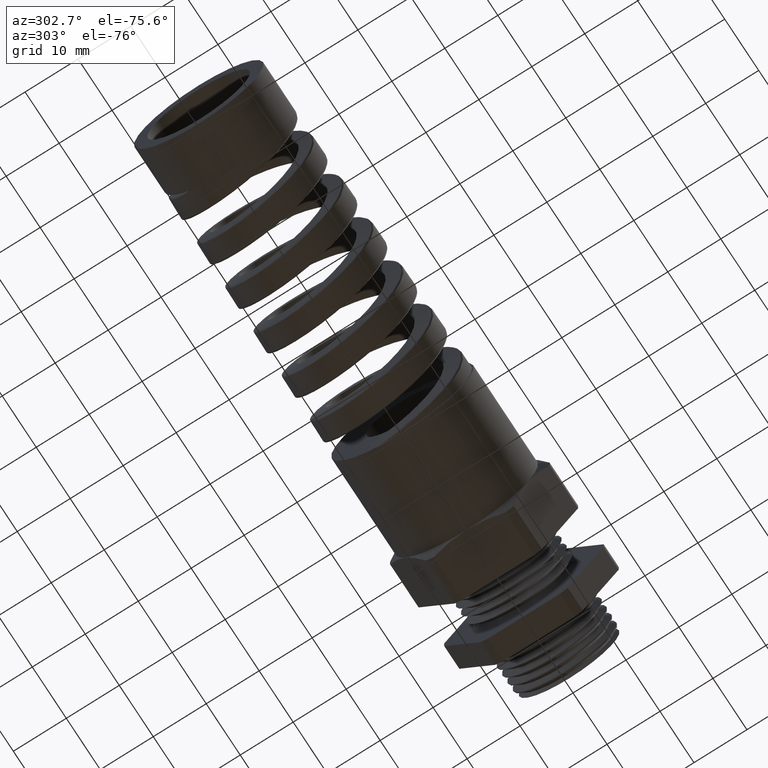
[diagram: clean part render]
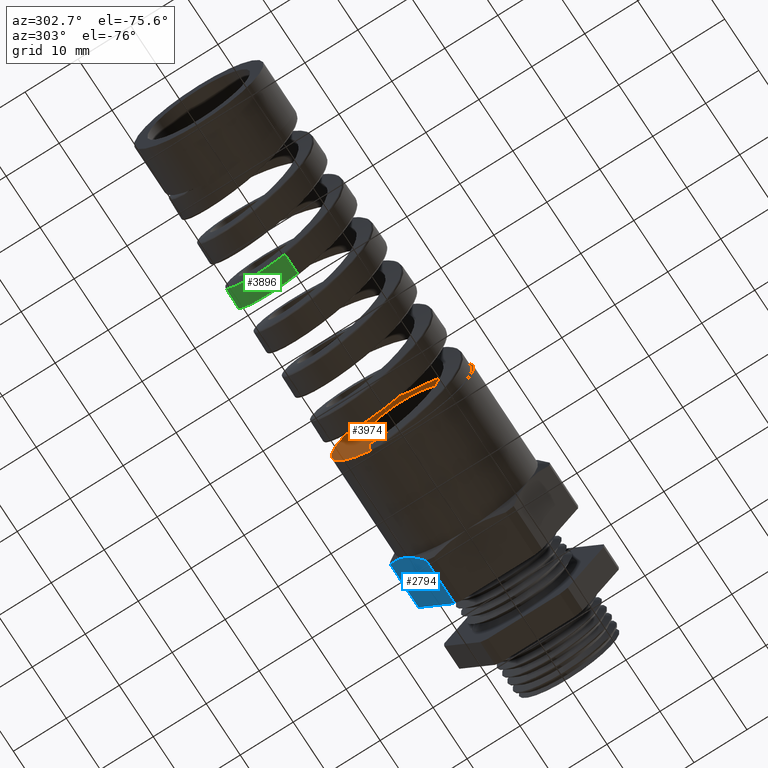
[diagram: same view with three faces highlighted in distinct colors, each labeled with its STEP entity id]
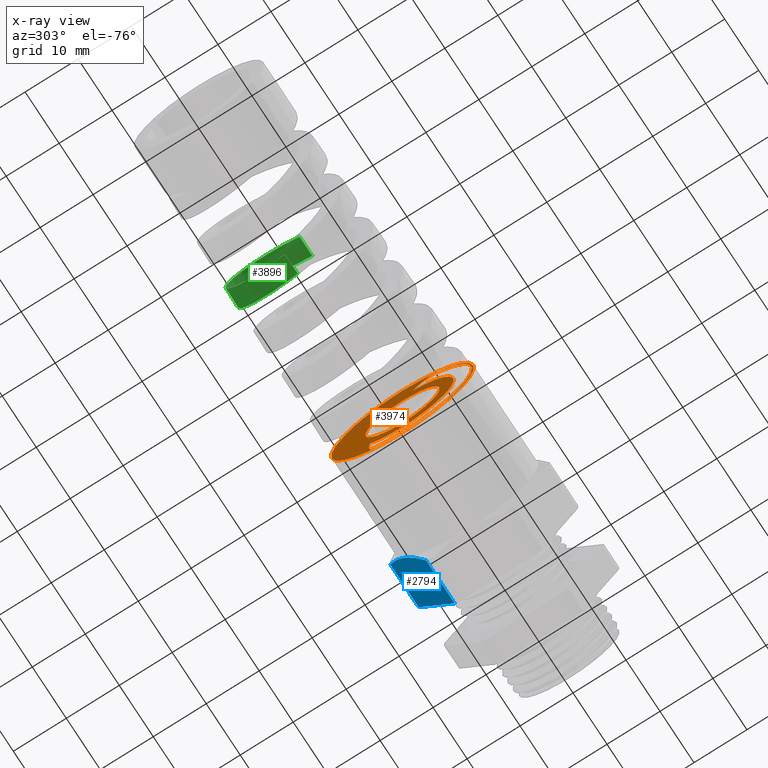
[diagram: x-ray of the same camera — body ghosted, the three highlighted faces saturated]
A machine part, auxiliary view with three faces highlighted in distinct colors.
The next image is the same camera in x-ray (body ghosted, the three faces saturated) — at least one of them is partly hidden behind the body in this view.
Their STEP definitions:

[orange] entity #3974 — the highlighted planar face has unit normal (-1, 0, 0).
#437 = DIRECTION ( 'NONE',  ( -1.000000000000000000, 0.0000000000000000000, 0.0000000000000000000 ) ) ;
#438 = CARTESIAN_POINT ( 'NONE',  ( -1.581476290660619200, 0.0000000000000000000, 0.0000000000000000000 ) ) ;
#439 = AXIS2_PLACEMENT_3D ( 'NONE', #438, #437, #505 ) ;
#440 = PLANE ( 'NONE',  #439 ) ;
#442 = FACE_BOUND ( 'NONE', #3964, .T. ) ;
#443 = FACE_OUTER_BOUND ( 'NONE', #3969, .T. ) ;
#444 = FACE_BOUND ( 'NONE', #3975, .T. ) ;
#505 = DIRECTION ( 'NONE',  ( 0.0000000000000000000, 0.0000000000000000000, 1.000000000000000000 ) ) ;
#610 = DIRECTION ( 'NONE',  ( 0.0000000000000000000, 0.0000000000000000000, 1.000000000000000000 ) ) ;
#611 = DIRECTION ( 'NONE',  ( -1.000000000000000000, 0.0000000000000000000, 0.0000000000000000000 ) ) ;
#612 = CARTESIAN_POINT ( 'NONE',  ( -1.581476290660619200, 0.0000000000000000000, 0.0000000000000000000 ) ) ;
#613 = AXIS2_PLACEMENT_3D ( 'NONE', #612, #611, #610 ) ;
#614 = CIRCLE ( 'NONE', #613, 0.2750000000000000200 ) ;
#738 = CIRCLE ( 'NONE', #756, 0.5170138455414640100 ) ;
#739 = CARTESIAN_POINT ( 'NONE',  ( -1.581476290660619000, 0.2395947729159171600, -0.4479899465159837800 ) ) ;
#740 = CARTESIAN_POINT ( 'NONE',  ( -1.581476290660619500, 0.2393978166125017300, -0.4489887989527713800 ) ) ;
#741 = CARTESIAN_POINT ( 'NONE',  ( -1.581476290660619200, 0.2387443856755334900, -0.4497935887819383700 ) ) ;
#742 = CARTESIAN_POINT ( 'NONE',  ( -1.581476290660618800, 0.2374701702775484600, -0.4513323751275207200 ) ) ;
#743 = CARTESIAN_POINT ( 'NONE',  ( -1.581476290660619000, 0.2367668135720972800, -0.4520481940536000300 ) ) ;
#744 = CARTESIAN_POINT ( 'NONE',  ( -1.581476290660619000, 0.2345930094758209300, -0.4541116560727949700 ) ) ;
#745 = CARTESIAN_POINT ( 'NONE',  ( -1.581476290660619200, 0.2330440772027533300, -0.4553825208635118900 ) ) ;
#746 = CARTESIAN_POINT ( 'NONE',  ( -1.581476290660619000, 0.2282981278050045500, -0.4590447653421638700 ) ) ;
#747 = CARTESIAN_POINT ( 'NONE',  ( -1.581476290660619500, 0.2249812029482343700, -0.4612857056665572400 ) ) ;
#748 = CARTESIAN_POINT ( 'NONE',  ( -1.581476290660619000, 0.2148458321704238800, -0.4676898152625065800 ) ) ;
#749 = CARTESIAN_POINT ( 'NONE',  ( -1.581476290660619900, 0.2078214009036236900, -0.4715219357451056500 ) ) ;
#750 = CARTESIAN_POINT ( 'NONE',  ( -1.581476290660619500, 0.1863209287074156500, -0.4821457008317258700 ) ) ;
#751 = CARTESIAN_POINT ( 'NONE',  ( -1.581476290660619200, 0.1714300096581214100, -0.4880273622731607400 ) ) ;
#752 = CARTESIAN_POINT ( 'NONE',  ( -1.581476290660619200, 0.1561883609519479100, -0.4928574970361280800 ) ) ;
#753 = DIRECTION ( 'NONE',  ( 0.0000000000000000000, 0.0000000000000000000, 1.000000000000000000 ) ) ;
#754 = DIRECTION ( 'NONE',  ( 1.000000000000000000, 0.0000000000000000000, 0.0000000000000000000 ) ) ;
#755 = CARTESIAN_POINT ( 'NONE',  ( -1.581476290660619200, 0.0000000000000000000, 0.0000000000000000000 ) ) ;
#756 = AXIS2_PLACEMENT_3D ( 'NONE', #755, #754, #753 ) ;
#757 = B_SPLINE_CURVE_WITH_KNOTS ( 'NONE', 3,
 ( #752, #751, #750, #749, #748, #747, #746, #745, #744, #743, #742, #741, #740, #739 ),
 .UNSPECIFIED., .F., .F.,
 ( 4, 2, 2, 2, 2, 2, 4 ),
 ( 0.0000000000000000000, 0.001217786265975421200, 0.001826679398963132000, 0.002131125965456987100, 0.002283349248703915200, 0.002359460890327377700, 0.002435572531950839700 ),
 .UNSPECIFIED. ) ;
#758 = CARTESIAN_POINT ( 'NONE',  ( -1.581476290660619900, -0.2035264114715413800, 0.4651117321561694100 ) ) ;
#759 = CARTESIAN_POINT ( 'NONE',  ( -1.581476290660619000, 0.2395947729159171600, -0.4479899465159837800 ) ) ;
#760 = CARTESIAN_POINT ( 'NONE',  ( -1.581476290660618800, 0.2445930851603557700, -0.4226412966956344400 ) ) ;
#761 = CARTESIAN_POINT ( 'NONE',  ( -1.581476290660619900, 0.2476079300222964500, -0.3967413439239690900 ) ) ;
#762 = CARTESIAN_POINT ( 'NONE',  ( -1.581476290660620300, 0.2491756876844481700, -0.3452950546097911500 ) ) ;
#763 = CARTESIAN_POINT ( 'NONE',  ( -1.581476290660618300, 0.2477838272508650900, -0.3196151953929042300 ) ) ;
#764 = CARTESIAN_POINT ( 'NONE',  ( -1.581476290660618800, 0.2439768108765436900, -0.2939833847127851800 ) ) ;
#765 = B_SPLINE_CURVE_WITH_KNOTS ( 'NONE', 3,
 ( #764, #763, #762, #761, #760, #759 ),
 .UNSPECIFIED., .F., .F.,
 ( 4, 2, 4 ),
 ( 0.0001882138518757768500, 0.002146741590613923000, 0.004105269329352069000 ),
 .UNSPECIFIED. ) ;
#766 = CARTESIAN_POINT ( 'NONE',  ( -1.581476290660619000, 0.2395947729159171600, -0.4479899465159837800 ) ) ;
#772 = CARTESIAN_POINT ( 'NONE',  ( -1.581476290660619200, -0.08011283778680081100, 0.3735409588715516400 ) ) ;
#773 = CARTESIAN_POINT ( 'NONE',  ( -1.581476290660619200, -0.09805496664331042600, 0.3924235497095024400 ) ) ;
#774 = CARTESIAN_POINT ( 'NONE',  ( -1.581476290660618300, -0.1174194812276305000, 0.4093455164549311100 ) ) ;
#775 = CARTESIAN_POINT ( 'NONE',  ( -1.581476290660619000, -0.1586306682812223000, 0.4397680302454001800 ) ) ;
#776 = CARTESIAN_POINT ( 'NONE',  ( -1.581476290660619900, -0.1804812060211607400, 0.4532632493806879600 ) ) ;
#777 = CARTESIAN_POINT ( 'NONE',  ( -1.581476290660619900, -0.2035264114715413800, 0.4651117321561694100 ) ) ;
#778 = CARTESIAN_POINT ( 'NONE',  ( -1.581476290660619200, -0.2878362359246521300, 0.4294806372472463300 ) ) ;
#779 = CARTESIAN_POINT ( 'NONE',  ( -1.581476290660619900, -0.2749755471509224800, 0.4380998203422788500 ) ) ;
#780 = CARTESIAN_POINT ( 'NONE',  ( -1.581476290660620100, -0.2615777167442519000, 0.4456901387269509600 ) ) ;
#781 = CARTESIAN_POINT ( 'NONE',  ( -1.581476290660619900, -0.2406053994859354800, 0.4553985078564801200 ) ) ;
#782 = CARTESIAN_POINT ( 'NONE',  ( -1.581476290660619900, -0.2334437524205867100, 0.4583694052105624600 ) ) ;
#783 = CARTESIAN_POINT ( 'NONE',  ( -1.581476290660619900, -0.2224599632310886000, 0.4621299269364310700 ) ) ;
#784 = CARTESIAN_POINT ( 'NONE',  ( -1.581476290660619500, -0.2187658228172785800, 0.4632712828768610900 ) ) ;
#785 = CARTESIAN_POINT ( 'NONE',  ( -1.581476290660619200, -0.2131233264642760600, 0.4646378106417989300 ) ) ;
#786 = CARTESIAN_POINT ( 'NONE',  ( -1.581476290660619500, -0.2112182180343263300, 0.4650413015481521000 ) ) ;
#787 = CARTESIAN_POINT ( 'NONE',  ( -1.581476290660619500, -0.2083318138519043600, 0.4654355307481762300 ) ) ;
#788 = CARTESIAN_POINT ( 'NONE',  ( -1.581476290660619200, -0.2073672283011625500, 0.4655330223194334400 ) ) ;
#789 = CARTESIAN_POINT ( 'NONE',  ( -1.581476290660619200, -0.2054261782288094900, 0.4655636064762576100 ) ) ;
#790 = CARTESIAN_POINT ( 'NONE',  ( -1.581476290660619900, -0.2044146998008045100, 0.4655684375212665300 ) ) ;
#791 = CARTESIAN_POINT ( 'NONE',  ( -1.581476290660619900, -0.2035264114715413800, 0.4651117321561694100 ) ) ;
#792 = B_SPLINE_CURVE_WITH_KNOTS ( 'NONE', 3,
 ( #777, #776, #775, #774, #773, #772 ),
 .UNSPECIFIED., .F., .F.,
 ( 4, 2, 4 ),
 ( 0.0003023189019076017000, 0.002253883634337523000, 0.004205448366767444200 ),
 .UNSPECIFIED. ) ;
#793 = B_SPLINE_CURVE_WITH_KNOTS ( 'NONE', 3,
 ( #791, #790, #789, #788, #787, #786, #785, #784, #783, #782, #781, #780, #779, #778 ),
 .UNSPECIFIED., .F., .F.,
 ( 4, 2, 2, 2, 2, 2, 4 ),
 ( 1.346507514538369100E-017, 7.404749739787491300E-005, 0.0001480949947957363600, 0.0002961899895914585100, 0.0005923799791829015100, 0.001184759958365785200, 0.002369519916731554900 ),
 .UNSPECIFIED. ) ;
#794 = CARTESIAN_POINT ( 'NONE',  ( -1.581476290660619200, 0.1561883609519479100, -0.4928574970361280800 ) ) ;
#1739 = CIRCLE ( 'NONE', #1810, 0.5300000000000001400 ) ;
#1807 = DIRECTION ( 'NONE',  ( 0.0000000000000000000, 0.0000000000000000000, 1.000000000000000000 ) ) ;
#1808 = DIRECTION ( 'NONE',  ( -1.000000000000000000, 0.0000000000000000000, 0.0000000000000000000 ) ) ;
#1809 = CARTESIAN_POINT ( 'NONE',  ( -1.581476290660619200, 0.0000000000000000000, 0.0000000000000000000 ) ) ;
#1810 = AXIS2_PLACEMENT_3D ( 'NONE', #1809, #1808, #1807 ) ;
#1916 = CARTESIAN_POINT ( 'NONE',  ( -1.581476290660619200, 0.0000000000000000000, -0.3820352270837501000 ) ) ;
#1917 = CARTESIAN_POINT ( 'NONE',  ( -1.581476290660619200, -0.08011283778680081100, 0.3735409588715516400 ) ) ;
#1918 = CARTESIAN_POINT ( 'NONE',  ( -1.581476290660618800, 0.2439768108765436900, -0.2939833847127851800 ) ) ;
#2020 = EDGE_CURVE ( 'NONE', #11733, #11735, #3543, .T. ) ;
#2037 = EDGE_CURVE ( 'NONE', #11735, #11734, #3603, .T. ) ;
#2606 = VERTEX_POINT ( 'NONE', #9364 ) ;
#2608 = EDGE_CURVE ( 'NONE', #2606, #2609, #9362, .T. ) ;
#2609 = VERTEX_POINT ( 'NONE', #8746 ) ;
#2951 = VERTEX_POINT ( 'NONE', #10836 ) ;
#2953 = EDGE_CURVE ( 'NONE', #2954, #2951, #10835, .T. ) ;
#2954 = VERTEX_POINT ( 'NONE', #10830 ) ;
#3178 = VERTEX_POINT ( 'NONE', #11405 ) ;
#3180 = EDGE_CURVE ( 'NONE', #3181, #3178, #11404, .T. ) ;
#3181 = VERTEX_POINT ( 'NONE', #11399 ) ;
#3539 = DIRECTION ( 'NONE',  ( 0.0000000000000000000, 0.0000000000000000000, 1.000000000000000000 ) ) ;
#3540 = DIRECTION ( 'NONE',  ( -1.000000000000000000, 0.0000000000000000000, 0.0000000000000000000 ) ) ;
#3541 = CARTESIAN_POINT ( 'NONE',  ( -1.581476290660619200, 0.0000000000000000000, 0.0000000000000000000 ) ) ;
#3542 = AXIS2_PLACEMENT_3D ( 'NONE', #3541, #3540, #3539 ) ;
#3543 = CIRCLE ( 'NONE', #3542, 0.3820352270837501000 ) ;
#3599 = DIRECTION ( 'NONE',  ( 0.0000000000000000000, 0.0000000000000000000, 1.000000000000000000 ) ) ;
#3600 = DIRECTION ( 'NONE',  ( -1.000000000000000000, 0.0000000000000000000, 0.0000000000000000000 ) ) ;
#3601 = CARTESIAN_POINT ( 'NONE',  ( -1.581476290660619200, 0.0000000000000000000, 0.0000000000000000000 ) ) ;
#3602 = AXIS2_PLACEMENT_3D ( 'NONE', #3601, #3600, #3599 ) ;
#3603 = CIRCLE ( 'NONE', #3602, 0.3820352270837501000 ) ;
#3964 = EDGE_LOOP ( 'NONE', ( #11645, #11652, #11653, #11650, #11651, #11644, #11683, #11685 ) ) ;
#3965 = ORIENTED_EDGE ( 'NONE', *, *, #11701, .T. ) ;
#3967 = ORIENTED_EDGE ( 'NONE', *, *, #3180, .T. ) ;
#3969 = EDGE_LOOP ( 'NONE', ( #3967, #3965 ) ) ;
#3970 = ORIENTED_EDGE ( 'NONE', *, *, #2608, .F. ) ;
#3972 = ORIENTED_EDGE ( 'NONE', *, *, #5426, .F. ) ;
#3974 = ADVANCED_FACE ( 'NONE', ( #444, #443, #442 ), #440, .T. ) ;
#3975 = EDGE_LOOP ( 'NONE', ( #3972, #3970 ) ) ;
#5426 = EDGE_CURVE ( 'NONE', #2609, #2606, #614, .T. ) ;
#8746 = CARTESIAN_POINT ( 'NONE',  ( -1.581476290660619200, 0.0000000000000000000, 0.2750000000000000200 ) ) ;
#8747 = DIRECTION ( 'NONE',  ( 0.0000000000000000000, 0.0000000000000000000, 1.000000000000000000 ) ) ;
#8748 = DIRECTION ( 'NONE',  ( -1.000000000000000000, 0.0000000000000000000, 0.0000000000000000000 ) ) ;
#8749 = CARTESIAN_POINT ( 'NONE',  ( -1.581476290660619200, 0.0000000000000000000, 0.0000000000000000000 ) ) ;
#9361 = AXIS2_PLACEMENT_3D ( 'NONE', #8749, #8748, #8747 ) ;
#9362 = CIRCLE ( 'NONE', #9361, 0.2750000000000000200 ) ;
#9364 = CARTESIAN_POINT ( 'NONE',  ( -1.581476290660619200, 3.367778697655221300E-017, -0.2750000000000000200 ) ) ;
#10830 = CARTESIAN_POINT ( 'NONE',  ( -1.581476290660619200, -0.2878362359246521300, 0.4294806372472463300 ) ) ;
#10831 = DIRECTION ( 'NONE',  ( 0.0000000000000000000, 0.0000000000000000000, 1.000000000000000000 ) ) ;
#10832 = DIRECTION ( 'NONE',  ( 1.000000000000000000, 0.0000000000000000000, 0.0000000000000000000 ) ) ;
#10833 = CARTESIAN_POINT ( 'NONE',  ( -1.581476290660619200, 0.0000000000000000000, 0.0000000000000000000 ) ) ;
#10834 = AXIS2_PLACEMENT_3D ( 'NONE', #10833, #10832, #10831 ) ;
#10835 = CIRCLE ( 'NONE', #10834, 0.5170138455414640100 ) ;
#10836 = CARTESIAN_POINT ( 'NONE',  ( -1.581476290660619200, 0.0000000000000000000, -0.5170138455414640100 ) ) ;
#11399 = CARTESIAN_POINT ( 'NONE',  ( -1.581476290660619200, 0.0000000000000000000, 0.5300000000000001400 ) ) ;
#11400 = DIRECTION ( 'NONE',  ( 0.0000000000000000000, 0.0000000000000000000, 1.000000000000000000 ) ) ;
#11401 = DIRECTION ( 'NONE',  ( -1.000000000000000000, 0.0000000000000000000, 0.0000000000000000000 ) ) ;
#11402 = CARTESIAN_POINT ( 'NONE',  ( -1.581476290660619200, 0.0000000000000000000, 0.0000000000000000000 ) ) ;
#11403 = AXIS2_PLACEMENT_3D ( 'NONE', #11402, #11401, #11400 ) ;
#11404 = CIRCLE ( 'NONE', #11403, 0.5300000000000001400 ) ;
#11405 = CARTESIAN_POINT ( 'NONE',  ( -1.581476290660619200, 6.490628035480972400E-017, -0.5300000000000000300 ) ) ;
#11642 = VERTEX_POINT ( 'NONE', #766 ) ;
#11643 = EDGE_CURVE ( 'NONE', #11733, #11642, #765, .T. ) ;
#11644 = ORIENTED_EDGE ( 'NONE', *, *, #11643, .F. ) ;
#11645 = ORIENTED_EDGE ( 'NONE', *, *, #11665, .F. ) ;
#11647 = EDGE_CURVE ( 'NONE', #11655, #11642, #757, .T. ) ;
#11648 = VERTEX_POINT ( 'NONE', #758 ) ;
#11649 = EDGE_CURVE ( 'NONE', #2951, #11655, #738, .T. ) ;
#11650 = ORIENTED_EDGE ( 'NONE', *, *, #11649, .T. ) ;
#11651 = ORIENTED_EDGE ( 'NONE', *, *, #11647, .T. ) ;
#11652 = ORIENTED_EDGE ( 'NONE', *, *, #11654, .T. ) ;
#11653 = ORIENTED_EDGE ( 'NONE', *, *, #2953, .T. ) ;
#11654 = EDGE_CURVE ( 'NONE', #11648, #2954, #793, .T. ) ;
#11655 = VERTEX_POINT ( 'NONE', #794 ) ;
#11665 = EDGE_CURVE ( 'NONE', #11648, #11734, #792, .T. ) ;
#11683 = ORIENTED_EDGE ( 'NONE', *, *, #2020, .T. ) ;
#11685 = ORIENTED_EDGE ( 'NONE', *, *, #2037, .T. ) ;
#11701 = EDGE_CURVE ( 'NONE', #3178, #3181, #1739, .T. ) ;
#11733 = VERTEX_POINT ( 'NONE', #1918 ) ;
#11734 = VERTEX_POINT ( 'NONE', #1917 ) ;
#11735 = VERTEX_POINT ( 'NONE', #1916 ) ;

[blue] entity #2794 — the highlighted planar face has unit normal (0, 0.866, -0.5).
#2701 = VERTEX_POINT ( 'NONE', #9560 ) ;
#2707 = VERTEX_POINT ( 'NONE', #9549 ) ;
#2716 = VERTEX_POINT ( 'NONE', #9593 ) ;
#2719 = EDGE_CURVE ( 'NONE', #2716, #2720, #9591, .T. ) ;
#2720 = VERTEX_POINT ( 'NONE', #9587 ) ;
#2762 = EDGE_CURVE ( 'NONE', #2701, #2707, #9696, .T. ) ;
#2794 = ADVANCED_FACE ( 'NONE', ( #9737 ), #9736, .T. ) ;
#2795 = EDGE_LOOP ( 'NONE', ( #2796, #2797, #2799, #2801, #2861 ) ) ;
#2796 = ORIENTED_EDGE ( 'NONE', *, *, #2719, .F. ) ;
#2797 = ORIENTED_EDGE ( 'NONE', *, *, #2798, .T. ) ;
#2798 = EDGE_CURVE ( 'NONE', #2716, #3158, #9786, .T. ) ;
#2799 = ORIENTED_EDGE ( 'NONE', *, *, #2800, .T. ) ;
#2800 = EDGE_CURVE ( 'NONE', #3158, #2701, #9779, .T. ) ;
#2801 = ORIENTED_EDGE ( 'NONE', *, *, #2762, .T. ) ;
#2861 = ORIENTED_EDGE ( 'NONE', *, *, #2862, .T. ) ;
#2862 = EDGE_CURVE ( 'NONE', #2707, #2720, #9936, .T. ) ;
#3158 = VERTEX_POINT ( 'NONE', #11381 ) ;
#9549 = CARTESIAN_POINT ( 'NONE',  ( -0.4708333333333330500, 0.5926543782626886300, -0.03349250552087918600 ) ) ;
#9560 = CARTESIAN_POINT ( 'NONE',  ( -0.8007805228795397100, 0.5926543782626887400, -0.03349250552087917900 ) ) ;
#9587 = CARTESIAN_POINT ( 'NONE',  ( -0.4708333333333330500, 0.3253325497488163100, -0.4965074944791206800 ) ) ;
#9588 = DIRECTION ( 'NONE',  ( 1.000000000000000000, 0.0000000000000000000, 0.0000000000000000000 ) ) ;
#9589 = VECTOR ( 'NONE', #9588, 39.37007874015748100 ) ;
#9590 = CARTESIAN_POINT ( 'NONE',  ( -2.533243884661831900, 0.3253325497488163100, -0.4965074944791206800 ) ) ;
#9591 = LINE ( 'NONE', #9590, #9589 ) ;
#9593 = CARTESIAN_POINT ( 'NONE',  ( -0.8007805228795397100, 0.3253325497488163700, -0.4965074944791207900 ) ) ;
#9693 = DIRECTION ( 'NONE',  ( 1.000000000000000000, 0.0000000000000000000, 0.0000000000000000000 ) ) ;
#9694 = VECTOR ( 'NONE', #9693, 39.37007874015748100 ) ;
#9695 = CARTESIAN_POINT ( 'NONE',  ( -2.533243884661831900, 0.5926543782626886300, -0.03349250552087918600 ) ) ;
#9696 = LINE ( 'NONE', #9695, #9694 ) ;
#9732 = DIRECTION ( 'NONE',  ( 0.0000000000000000000, 0.5000000000000000000, 0.8660254037844386000 ) ) ;
#9733 = DIRECTION ( 'NONE',  ( 0.0000000000000000000, 0.8660254037844387100, -0.5000000000000001100 ) ) ;
#9734 = CARTESIAN_POINT ( 'NONE',  ( -2.533243884661831900, 0.3253325497488162000, -0.4965074944791207400 ) ) ;
#9735 = AXIS2_PLACEMENT_3D ( 'NONE', #9734, #9733, #9732 ) ;
#9736 = PLANE ( 'NONE',  #9735 ) ;
#9737 = FACE_OUTER_BOUND ( 'NONE', #2795, .T. ) ;
#9771 = CARTESIAN_POINT ( 'NONE',  ( -0.8007805228795397100, 0.5926543782626887400, -0.03349250552087917900 ) ) ;
#9772 = CARTESIAN_POINT ( 'NONE',  ( -0.8121583111907524400, 0.5707743463978561800, -0.07138983238199540800 ) ) ;
#9773 = CARTESIAN_POINT ( 'NONE',  ( -0.8214003591281864300, 0.5487193861851588100, -0.1095901440292973200 ) ) ;
#9774 = CARTESIAN_POINT ( 'NONE',  ( -0.8309221305962483100, 0.5152813705712209200, -0.1675064859769189200 ) ) ;
#9775 = CARTESIAN_POINT ( 'NONE',  ( -0.8333721404368326100, 0.5040760730113617000, -0.1869146306645226600 ) ) ;
#9776 = CARTESIAN_POINT ( 'NONE',  ( -0.8366665420851497900, 0.4815339693462992200, -0.2259586995218954800 ) ) ;
#9777 = CARTESIAN_POINT ( 'NONE',  ( -0.8375000000000000200, 0.4702241497211294100, -0.2455478817371290500 ) ) ;
#9778 = CARTESIAN_POINT ( 'NONE',  ( -0.8375000000000000200, 0.4589934640057526900, -0.2650000000000001200 ) ) ;
#9779 = B_SPLINE_CURVE_WITH_KNOTS ( 'NONE', 3,
 ( #9778, #9777, #9776, #9775, #9774, #9773, #9772, #9771 ),
 .UNSPECIFIED., .F., .F.,
 ( 4, 2, 2, 4 ),
 ( 0.006851532669467769000, 0.008552772946843111000, 0.01025401322421845400, 0.01365649377896913800 ),
 .UNSPECIFIED. ) ;
#9780 = CARTESIAN_POINT ( 'NONE',  ( -0.8375000000000000200, 0.4589934640057526900, -0.2650000000000001200 ) ) ;
#9781 = CARTESIAN_POINT ( 'NONE',  ( -0.8375000000000000200, 0.4363791516153982000, -0.3041691380383280100 ) ) ;
#9782 = CARTESIAN_POINT ( 'NONE',  ( -0.8341133144435340900, 0.4139516039507624100, -0.3430147900826496800 ) ) ;
#9783 = CARTESIAN_POINT ( 'NONE',  ( -0.8214552305450429900, 0.3694210314480135300, -0.4201440041475404400 ) ) ;
#9784 = CARTESIAN_POINT ( 'NONE',  ( -0.8122123161882934800, 0.3473164358104832700, -0.4584302868725079700 ) ) ;
#9785 = CARTESIAN_POINT ( 'NONE',  ( -0.8007805228795397100, 0.3253325497488163700, -0.4965074944791207900 ) ) ;
#9786 = B_SPLINE_CURVE_WITH_KNOTS ( 'NONE', 3,
 ( #9785, #9784, #9783, #9782, #9781, #9780 ),
 .UNSPECIFIED., .F., .F.,
 ( 4, 2, 4 ),
 ( 2.361309237109395500E-007, 0.003425884400195740000, 0.006851532669467769000 ),
 .UNSPECIFIED. ) ;
#9933 = DIRECTION ( 'NONE',  ( 0.0000000000000000000, -0.5000000000000000000, -0.8660254037844386000 ) ) ;
#9934 = VECTOR ( 'NONE', #9933, 39.37007874015748900 ) ;
#9935 = CARTESIAN_POINT ( 'NONE',  ( -0.4708333333333332700, 0.5577434640057523700, -0.09395998275257333400 ) ) ;
#9936 = LINE ( 'NONE', #9935, #9934 ) ;
#11381 = CARTESIAN_POINT ( 'NONE',  ( -0.8375000000000000200, 0.4589934640057526900, -0.2650000000000001200 ) ) ;

[green] entity #3896 — the highlighted conical surface has half-angle 1 deg.
#100 = DIRECTION ( 'NONE',  ( 0.0000000000000000000, 0.0000000000000000000, -1.000000000000000000 ) ) ;
#101 = DIRECTION ( 'NONE',  ( 1.000000000000000000, 0.0000000000000000000, 0.0000000000000000000 ) ) ;
#102 = CARTESIAN_POINT ( 'NONE',  ( -0.8375000000000000200, 0.0000000000000000000, 0.0000000000000000000 ) ) ;
#103 = AXIS2_PLACEMENT_3D ( 'NONE', #102, #101, #100 ) ;
#104 = CONICAL_SURFACE ( 'NONE', #103, 0.5299999999999996900, 0.01745329251994346200 ) ;
#105 = FACE_OUTER_BOUND ( 'NONE', #3841, .T. ) ;
#2873 = ORIENTED_EDGE ( 'NONE', *, *, #2874, .T. ) ;
#2874 = EDGE_CURVE ( 'NONE', #2875, #2876, #9943, .T. ) ;
#2875 = VERTEX_POINT ( 'NONE', #9945 ) ;
#2876 = VERTEX_POINT ( 'NONE', #9944 ) ;
#2915 = ORIENTED_EDGE ( 'NONE', *, *, #2916, .T. ) ;
#2916 = EDGE_CURVE ( 'NONE', #2876, #2917, #10437, .T. ) ;
#2917 = VERTEX_POINT ( 'NONE', #10519 ) ;
#2918 = ORIENTED_EDGE ( 'NONE', *, *, #2919, .T. ) ;
#2919 = EDGE_CURVE ( 'NONE', #2917, #2920, #10517, .T. ) ;
#2920 = VERTEX_POINT ( 'NONE', #10547 ) ;
#2921 = ORIENTED_EDGE ( 'NONE', *, *, #2922, .F. ) ;
#2922 = EDGE_CURVE ( 'NONE', #2875, #2920, #10546, .T. ) ;
#3841 = EDGE_LOOP ( 'NONE', ( #2873, #2915, #2918, #2921 ) ) ;
#3896 = ADVANCED_FACE ( 'NONE', ( #105 ), #104, .T. ) ;
#9943 = B_SPLINE_CURVE_WITH_KNOTS ( 'NONE', 3,
 ( #10027, #10026, #10025, #10024, #10023, #10022, #10021, #10020, #10019, #10018, #10017, #10016, #10015, #10014, #10013, #10012, #10011, #10010, #10009, #10008, #10007, #10006, #10005, #10004, #10003, #10002, #10001, #10000, #9999, #9998, #9997, #9996, #9995, #9994, #9993, #9992, #9991, #9990, #9989, #9988, #9987, #9986, #9985, #9984, #9983, #9982, #9981, #9980, #9979, #9978, #10064 ),
 .UNSPECIFIED., .F., .F.,
 ( 4, 2, 2, 2, 2, 2, 2, 2, 2, 2, 2, 2, 2, 2, 2, 2, 2, 2, 2, 2, 2, 2, 2, 1, 2, 4 ),
 ( 0.1503022036203561800, 0.1515475829473037200, 0.1527929622742512400, 0.1552837209281463000, 0.1565291002550938400, 0.1577744795820413500, 0.1590198589089889000, 0.1602652382359364100, 0.1627559968898314700, 0.1640013762167790200, 0.1652467555437265300, 0.1677375141976215900, 0.1689828935245691100, 0.1702282728515166500, 0.1727190315054116800, 0.1752097901593067400, 0.1764551694862542800, 0.1777005488132018000, 0.1801913074670968800, 0.1814366867940444000, 0.1826820661209919400, 0.1851728247748870000, 0.1864182041018345200, 0.1876635834287820600, 0.1889089627557296000, 0.1901543420826771200 ),
 .UNSPECIFIED. ) ;
#9944 = CARTESIAN_POINT ( 'NONE',  ( -2.774348163852513100, -4.274145695911936100E-015, 0.4961921895438548000 ) ) ;
#9945 = CARTESIAN_POINT ( 'NONE',  ( -2.942413571626058700, -2.852249666928322700E-016, -0.4932585969389800500 ) ) ;
#9978 = CARTESIAN_POINT ( 'NONE',  ( -2.776108689607742300, 0.01630676458799802300, 0.4961614594524895700 ) ) ;
#9979 = CARTESIAN_POINT ( 'NONE',  ( -2.777867518772716000, 0.03259861442734585100, 0.4953226093827826600 ) ) ;
#9980 = CARTESIAN_POINT ( 'NONE',  ( -2.781354140345220200, 0.06477395360021100100, 0.4920885158374829200 ) ) ;
#9981 = CARTESIAN_POINT ( 'NONE',  ( -2.784824383083789100, 0.09665987885287354000, 0.4872983964392795200 ) ) ;
#9982 = CARTESIAN_POINT ( 'NONE',  ( -2.788297718969965800, 0.1279690790861448300, 0.4794285694686707400 ) ) ;
#9983 = CARTESIAN_POINT ( 'NONE',  ( -2.791790924234415400, 0.1589827400082652900, 0.4699913301823638300 ) ) ;
#9984 = CARTESIAN_POINT ( 'NONE',  ( -2.793556938003331200, 0.1744215361381273600, 0.4644514738488232400 ) ) ;
#9985 = CARTESIAN_POINT ( 'NONE',  ( -2.798814764957493500, 0.2194315171968556900, 0.4457452012927020600 ) ) ;
#9986 = CARTESIAN_POINT ( 'NONE',  ( -2.802281556017547800, 0.2478446227261489600, 0.4305098185441209600 ) ) ;
#9987 = CARTESIAN_POINT ( 'NONE',  ( -2.807516545591634200, 0.2881094892042136400, 0.4035914385532721200 ) ) ;
#9988 = CARTESIAN_POINT ( 'NONE',  ( -2.809267041314177100, 0.3011359496888602600, 0.3939363652759023700 ) ) ;
#9989 = CARTESIAN_POINT ( 'NONE',  ( -2.812791844022893200, 0.3263704542737809700, 0.3732158468520125900 ) ) ;
#9990 = CARTESIAN_POINT ( 'NONE',  ( -2.814545035582177100, 0.3384169897121762100, 0.3622788315698381400 ) ) ;
#9991 = CARTESIAN_POINT ( 'NONE',  ( -2.819773846341960200, 0.3726810616244290400, 0.3279844119070248200 ) ) ;
#9992 = CARTESIAN_POINT ( 'NONE',  ( -2.823232413209110400, 0.3931377796046870400, 0.3030775491392184700 ) ) ;
#9993 = CARTESIAN_POINT ( 'NONE',  ( -2.828487487020717900, 0.4201928242930011400, 0.2626231769381028300 ) ) ;
#9994 = CARTESIAN_POINT ( 'NONE',  ( -2.830258471954238100, 0.4286321347833959000, 0.2485500167506933000 ) ) ;
#9995 = CARTESIAN_POINT ( 'NONE',  ( -2.833768517879582800, 0.4439339560085626100, 0.2199194906148534400 ) ) ;
#9996 = CARTESIAN_POINT ( 'NONE',  ( -2.835514226909737100, 0.4508369242290594100, 0.2053146045700373900 ) ) ;
#9997 = CARTESIAN_POINT ( 'NONE',  ( -2.840745692800794600, 0.4693483108128432300, 0.1606515369107281400 ) ) ;
#9998 = CARTESIAN_POINT ( 'NONE',  ( -2.844223506396934100, 0.4787845670091273000, 0.1297338439248063300 ) ) ;
#9999 = CARTESIAN_POINT ( 'NONE',  ( -2.851280568262813700, 0.4915634867593295400, 0.06564253680551718200 ) ) ;
#10000 = CARTESIAN_POINT ( 'NONE',  ( -2.854750102871663300, 0.4947049826169070400, 0.03349630917364625200 ) ) ;
#10001 = CARTESIAN_POINT ( 'NONE',  ( -2.859976574622841400, 0.4947370215255114700, -0.01485631088384787600 ) ) ;
#10002 = CARTESIAN_POINT ( 'NONE',  ( -2.861722213634947400, 0.4939619844813312200, -0.03099625191647868000 ) ) ;
#10003 = CARTESIAN_POINT ( 'NONE',  ( -2.865237452583238000, 0.4908045131462500700, -0.06332013191135349400 ) ) ;
#10004 = CARTESIAN_POINT ( 'NONE',  ( -2.867012360697027700, 0.4884043211880219100, -0.07955067904587268000 ) ) ;
#10005 = CARTESIAN_POINT ( 'NONE',  ( -2.872281926666605300, 0.4789247775306078600, -0.1272633440515737500 ) ) ;
#10006 = CARTESIAN_POINT ( 'NONE',  ( -2.875753735986301700, 0.4695755013278653000, -0.1581052852326688400 ) ) ;
#10007 = CARTESIAN_POINT ( 'NONE',  ( -2.880996368489024700, 0.4510509623836052000, -0.2029214185073359700 ) ) ;
#10008 = CARTESIAN_POINT ( 'NONE',  ( -2.882755692437059600, 0.4440970884193475900, -0.2176610943514116200 ) ) ;
#10009 = CARTESIAN_POINT ( 'NONE',  ( -2.886283067335442700, 0.4287241464573193800, -0.2464413060495062000 ) ) ;
#10010 = CARTESIAN_POINT ( 'NONE',  ( -2.888033465094302300, 0.4203871233534513500, -0.2603392568394065100 ) ) ;
#10011 = CARTESIAN_POINT ( 'NONE',  ( -2.893272799488946200, 0.3934873285008288500, -0.3006006012316318500 ) ) ;
#10012 = CARTESIAN_POINT ( 'NONE',  ( -2.896750369896194900, 0.3730534785578354400, -0.3255448193558351200 ) ) ;
#10013 = CARTESIAN_POINT ( 'NONE',  ( -2.902039866081245600, 0.3385740633497605300, -0.3600440291360541000 ) ) ;
#10014 = CARTESIAN_POINT ( 'NONE',  ( -2.903815725833845700, 0.3264260559713974600, -0.3710492771850584800 ) ) ;
#10015 = CARTESIAN_POINT ( 'NONE',  ( -2.907326522397544200, 0.3013745981391172100, -0.3915920759605677200 ) ) ;
#10016 = CARTESIAN_POINT ( 'NONE',  ( -2.909071194379829100, 0.2884084664660021000, -0.4011965437975410500 ) ) ;
#10017 = CARTESIAN_POINT ( 'NONE',  ( -2.912558859715228500, 0.2616110358623775500, -0.4190914606843755300 ) ) ;
#10018 = CARTESIAN_POINT ( 'NONE',  ( -2.914301599344282200, 0.2477797103146258400, -0.4273819195078005200 ) ) ;
#10019 = CARTESIAN_POINT ( 'NONE',  ( -2.917803336158614000, 0.2192426447403824100, -0.4426312206679812200 ) ) ;
#10020 = CARTESIAN_POINT ( 'NONE',  ( -2.919570823076962800, 0.2044638871875498800, -0.4496191884119456500 ) ) ;
#10021 = CARTESIAN_POINT ( 'NONE',  ( -2.924864184590113300, 0.1593006637989273500, -0.4682851925373370200 ) ) ;
#10022 = CARTESIAN_POINT ( 'NONE',  ( -2.928347249587399200, 0.1284101329590451600, -0.4775957434004110500 ) ) ;
#10023 = CARTESIAN_POINT ( 'NONE',  ( -2.933600340033301700, 0.08094570233204059800, -0.4869946153773820900 ) ) ;
#10024 = CARTESIAN_POINT ( 'NONE',  ( -2.935355800556056500, 0.06493473715929011500, -0.4893609792729005100 ) ) ;
#10025 = CARTESIAN_POINT ( 'NONE',  ( -2.938889006635843500, 0.03252430304679625900, -0.4925159952926055400 ) ) ;
#10026 = CARTESIAN_POINT ( 'NONE',  ( -2.940660043602723000, 0.01618233978557616700, -0.4932892048844808000 ) ) ;
#10027 = CARTESIAN_POINT ( 'NONE',  ( -2.942413571626058700, -2.852249666928322700E-016, -0.4932585969389800500 ) ) ;
#10064 = CARTESIAN_POINT ( 'NONE',  ( -2.774348163852513100, -4.274145695911936100E-015, 0.4961921895438548000 ) ) ;
#10188 = CARTESIAN_POINT ( 'NONE',  ( -2.769309474190264200, 0.2204856104243342900, -0.4458009763884823200 ) ) ;
#10189 = CARTESIAN_POINT ( 'NONE',  ( -2.765829217398753300, 0.2490718418785794500, -0.4305554996101900700 ) ) ;
#10192 = CARTESIAN_POINT ( 'NONE',  ( -2.760554089099785700, 0.2897144561878322000, -0.4034555234910633400 ) ) ;
#10435 = VECTOR ( 'NONE', #10520, 39.37007874015748100 ) ;
#10436 = CARTESIAN_POINT ( 'NONE',  ( -0.8375000000000000200, 6.490628035480968700E-017, 0.5299999999999996900 ) ) ;
#10437 = LINE ( 'NONE', #10436, #10435 ) ;
#10479 = CARTESIAN_POINT ( 'NONE',  ( -2.758776633675878600, 0.3029561041818429300, -0.3936513583396127300 ) ) ;
#10480 = CARTESIAN_POINT ( 'NONE',  ( -2.755242946748929400, 0.3282378147198324900, -0.3729141701567253400 ) ) ;
#10481 = CARTESIAN_POINT ( 'NONE',  ( -2.753487005222886400, 0.3402827129312479000, -0.3619925387459435000 ) ) ;
#10482 = CARTESIAN_POINT ( 'NONE',  ( -2.748226627846242800, 0.3746734017897610500, -0.3276128592566078200 ) ) ;
#10483 = CARTESIAN_POINT ( 'NONE',  ( -2.744729061005132500, 0.3952918966537333200, -0.3025555728325158300 ) ) ;
#10484 = CARTESIAN_POINT ( 'NONE',  ( -2.739415115131642200, 0.4226299266159414000, -0.2616581831605658300 ) ) ;
#10485 = CARTESIAN_POINT ( 'NONE',  ( -2.737647989563758400, 0.4310506962317935400, -0.2475929795115575100 ) ) ;
#10486 = CARTESIAN_POINT ( 'NONE',  ( -2.734141033468897100, 0.4463650016198481600, -0.2189203089986341800 ) ) ;
#10487 = CARTESIAN_POINT ( 'NONE',  ( -2.730649423738394300, 0.4602140097815019000, -0.1896134838938593700 ) ) ;
#10488 = CARTESIAN_POINT ( 'NONE',  ( -2.727151704070723200, 0.4711604456734213000, -0.1590547886653069200 ) ) ;
#10489 = CARTESIAN_POINT ( 'NONE',  ( -2.723632908701783400, 0.4806280921704993400, -0.1278604176308293900 ) ) ;
#10490 = CARTESIAN_POINT ( 'NONE',  ( -2.721853760636093100, 0.4846345590166099000, -0.1118606704593008100 ) ) ;
#10491 = CARTESIAN_POINT ( 'NONE',  ( -2.716560889374229700, 0.4941692489542764400, -0.06381179917320641000 ) ) ;
#10492 = CARTESIAN_POINT ( 'NONE',  ( -2.713071455077922200, 0.4973205704367525400, -0.03155601670527948000 ) ) ;
#10493 = CARTESIAN_POINT ( 'NONE',  ( -2.706063435015822400, 0.4973236345802732900, 0.03338270447537168600 ) ) ;
#10494 = CARTESIAN_POINT ( 'NONE',  ( -2.702512019203385100, 0.4940702308779078600, 0.06635058484019436300 ) ) ;
#10495 = CARTESIAN_POINT ( 'NONE',  ( -2.695512344724164700, 0.4813656527674197200, 0.1300633388519164300 ) ) ;
#10496 = CARTESIAN_POINT ( 'NONE',  ( -2.692036064900168200, 0.4719680804580218000, 0.1610763071518880300 ) ) ;
#10497 = CARTESIAN_POINT ( 'NONE',  ( -2.686753468394800700, 0.4532457333895152900, 0.2063028761974960400 ) ) ;
#10498 = CARTESIAN_POINT ( 'NONE',  ( -2.684974264038713500, 0.4461913468264713800, 0.2212161985012590900 ) ) ;
#10499 = CARTESIAN_POINT ( 'NONE',  ( -2.681452108317204700, 0.4308054129396262600, 0.2499824543755675100 ) ) ;
#10500 = CARTESIAN_POINT ( 'NONE',  ( -2.679701346163502000, 0.4224517902667058200, 0.2639050180462851900 ) ) ;
#10501 = CARTESIAN_POINT ( 'NONE',  ( -2.674461124703241900, 0.3954501604320851400, 0.3043173314916918200 ) ) ;
#10502 = CARTESIAN_POINT ( 'NONE',  ( -2.670976478712405300, 0.3748401290892980900, 0.3295047817267670600 ) ) ;
#10503 = CARTESIAN_POINT ( 'NONE',  ( -2.663909688737138300, 0.3284230801054113200, 0.3759516940345846700 ) ) ;
#10504 = CARTESIAN_POINT ( 'NONE',  ( -2.660431260181782300, 0.3033128424327714000, 0.3965295599429486400 ) ) ;
#10505 = CARTESIAN_POINT ( 'NONE',  ( -2.655190789240886100, 0.2629130566974167100, 0.4235733832037765800 ) ) ;
#10506 = CARTESIAN_POINT ( 'NONE',  ( -2.653440456918138200, 0.2489873890004145300, 0.4319462270054146300 ) ) ;
#10507 = CARTESIAN_POINT ( 'NONE',  ( -2.649917656372183100, 0.2201977151367692000, 0.4473773741527321000 ) ) ;
#10508 = CARTESIAN_POINT ( 'NONE',  ( -2.648141230413806600, 0.2052958312865118000, 0.4544413359255001200 ) ) ;
#10509 = CARTESIAN_POINT ( 'NONE',  ( -2.642874812201709800, 0.1601415671255234700, 0.4731874851442194900 ) ) ;
#10510 = CARTESIAN_POINT ( 'NONE',  ( -2.639409411107112500, 0.1291465423659177700, 0.4826257885043613300 ) ) ;
#10511 = CARTESIAN_POINT ( 'NONE',  ( -2.634167497297896300, 0.08133828512434082600, 0.4922288005161959400 ) ) ;
#10512 = CARTESIAN_POINT ( 'NONE',  ( -2.632406883700898300, 0.06512441522276275800, 0.4946708100704078600 ) ) ;
#10513 = CARTESIAN_POINT ( 'NONE',  ( -2.628879782208415300, 0.03249480581862911700, 0.4979416563945273100 ) ) ;
#10514 = CARTESIAN_POINT ( 'NONE',  ( -2.627128906590043800, 0.01622510514976576200, 0.4987619112380597400 ) ) ;
#10515 = CARTESIAN_POINT ( 'NONE',  ( -2.625382030573647300, -1.421113197248958800E-013, 0.4987924030723428500 ) ) ;
#10517 = B_SPLINE_CURVE_WITH_KNOTS ( 'NONE', 3,
 ( #10515, #10514, #10513, #10512, #10511, #10510, #10509, #10508, #10507, #10506, #10505, #10504, #10503, #10502, #10501, #10500, #10499, #10498, #10497, #10496, #10495, #10494, #10493, #10492, #10491, #10490, #10489, #10488, #10487, #10486, #10485, #10484, #10483, #10482, #10481, #10480, #10479, #10192, #10189, #10188, #10554, #10553, #10552, #10551, #10550, #10549, #10548 ),
 .UNSPECIFIED., .F., .F.,
 ( 4, 2, 2, 2, 2, 2, 2, 2, 2, 2, 2, 2, 2, 2, 1, 2, 2, 2, 2, 2, 2, 2, 2, 4 ),
 ( 0.2533457944804832200, 0.2545986237092314200, 0.2558514529379795600, 0.2583571113954759000, 0.2596099406242241000, 0.2608627698529722400, 0.2633684283104685800, 0.2658740867679649200, 0.2671269159967131200, 0.2683797452254612600, 0.2708854036829576000, 0.2733910621404539400, 0.2758967205979502800, 0.2771495498266984800, 0.2784023790554466800, 0.2796552082841948200, 0.2809080375129430200, 0.2834136959704393600, 0.2846665251991875600, 0.2859193544279357000, 0.2884250128854321000, 0.2896778421141803000, 0.2909306713429284900, 0.2934363298004248300 ),
 .UNSPECIFIED. ) ;
#10519 = CARTESIAN_POINT ( 'NONE',  ( -2.625382030573647300, -1.421113197248958800E-013, 0.4987924030723428500 ) ) ;
#10520 = DIRECTION ( 'NONE',  ( 0.9998476951563912700, 2.137303368083811700E-018, 0.01745240643728367800 ) ) ;
#10543 = DIRECTION ( 'NONE',  ( 0.9998476951563912700, 0.0000000000000000000, -0.01745240643728367800 ) ) ;
#10544 = VECTOR ( 'NONE', #10543, 39.37007874015748100 ) ;
#10545 = CARTESIAN_POINT ( 'NONE',  ( -0.8375000000000000200, 0.0000000000000000000, -0.5299999999999996900 ) ) ;
#10546 = LINE ( 'NONE', #10545, #10544 ) ;
#10547 = CARTESIAN_POINT ( 'NONE',  ( -2.793973681807268700, -3.212618634854539800E-013, -0.4958496248537046000 ) ) ;
#10548 = CARTESIAN_POINT ( 'NONE',  ( -2.793973681807268700, -3.212618634854539800E-013, -0.4958496248537046000 ) ) ;
#10549 = CARTESIAN_POINT ( 'NONE',  ( -2.790433301547257100, 0.03274716727376925100, -0.4959114224210351400 ) ) ;
#10550 = CARTESIAN_POINT ( 'NONE',  ( -2.786941443773372400, 0.06502780963567841900, -0.4927594181258301300 ) ) ;
#10551 = CARTESIAN_POINT ( 'NONE',  ( -2.781672691261747300, 0.1127582083628933300, -0.4833511990846275900 ) ) ;
#10552 = CARTESIAN_POINT ( 'NONE',  ( -2.779911564555490200, 0.1285524577949941300, -0.4794295010273972900 ) ) ;
#10553 = CARTESIAN_POINT ( 'NONE',  ( -2.776364581493150600, 0.1599009124698931000, -0.4699696928265114100 ) ) ;
#10554 = CARTESIAN_POINT ( 'NONE',  ( -2.774586394868645100, 0.1753859244495983000, -0.4644426220388531700 ) ) ;